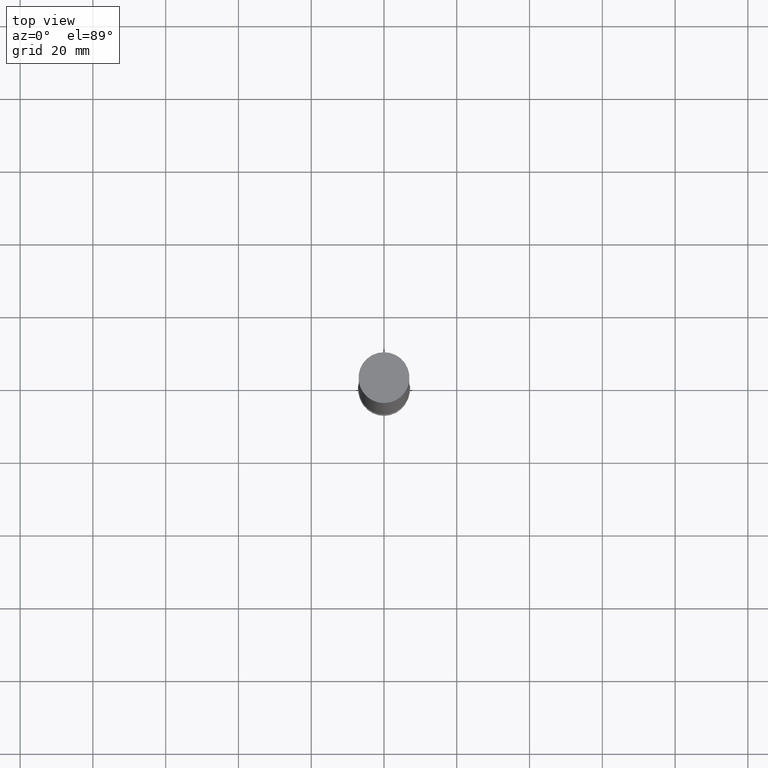
[diagram: clean part render]
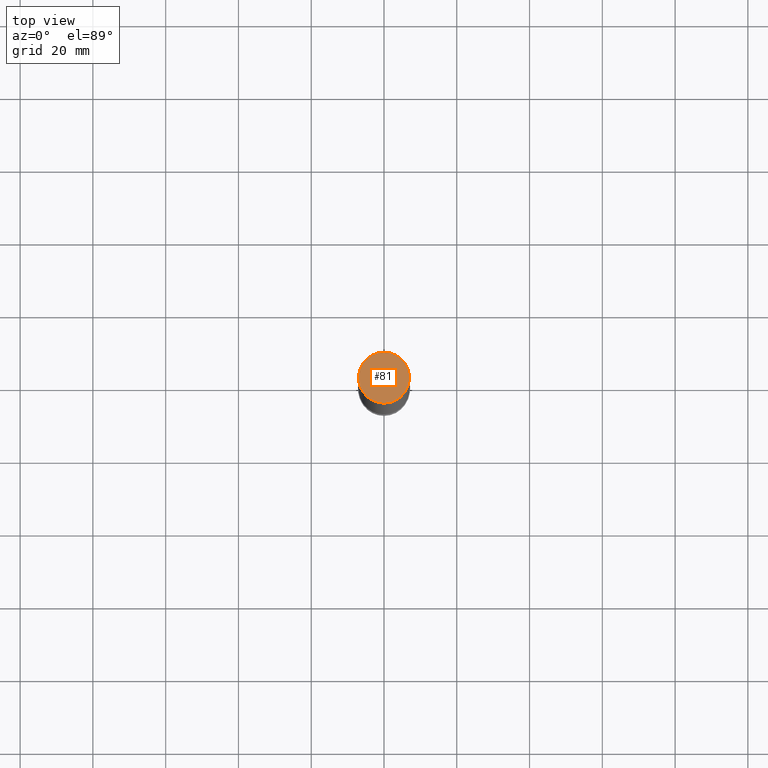
[diagram: same view with one face highlighted and labeled with its STEP entity id]
A machine part, top view. The second image highlights one B-rep face of the part: STEP entity #81.
In plain terms, the highlighted planar face has unit normal (-0, -0, 1).
Its self-contained STEP definition (entity closure, byte-faithful):
#81=ADVANCED_FACE('',(#102),#103,.T.);
#102=FACE_OUTER_BOUND('',#127,.T.);
#103=PLANE('',#128);
#127=EDGE_LOOP('',(#164));
#128=AXIS2_PLACEMENT_3D('',#165,#166,#167);
#164=ORIENTED_EDGE('',*,*,#184,.F.);
#165=CARTESIAN_POINT('',(-1.22464679914735E-014,3.49999999999998,200.0));
#166=DIRECTION('',(-6.12323399573677E-017,-1.22464679914735E-016,1.0));
#167=DIRECTION('',(1.23259516440783E-032,-1.0,-1.22464679914735E-016));
#184=EDGE_CURVE('',#198,#198,#199,.T.);
#198=VERTEX_POINT('',#214);
#199=CIRCLE('',#215,7.0);
#214=CARTESIAN_POINT('',(-1.22464679914735E-014,6.99999999999998,200.0));
#215=AXIS2_PLACEMENT_3D('',#236,#237,#238);
#236=CARTESIAN_POINT('',(-1.22464679914735E-014,-2.44929359829471E-014,200.0));
#237=DIRECTION('',(6.12323399573677E-017,1.22464679914735E-016,-1.0));
#238=DIRECTION('',(-1.23259516440783E-032,1.0,1.22464679914735E-016));